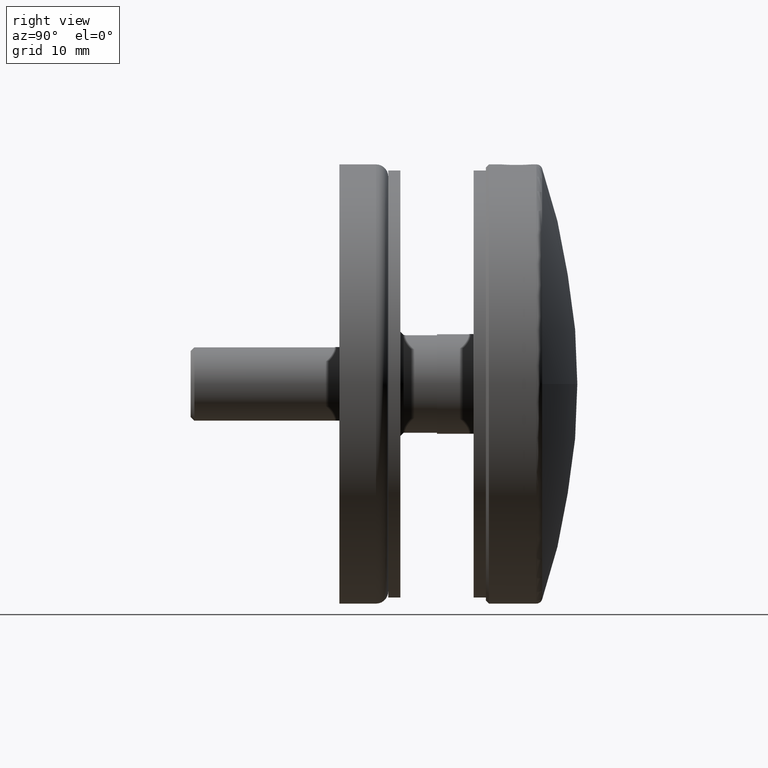
[diagram: clean part render]
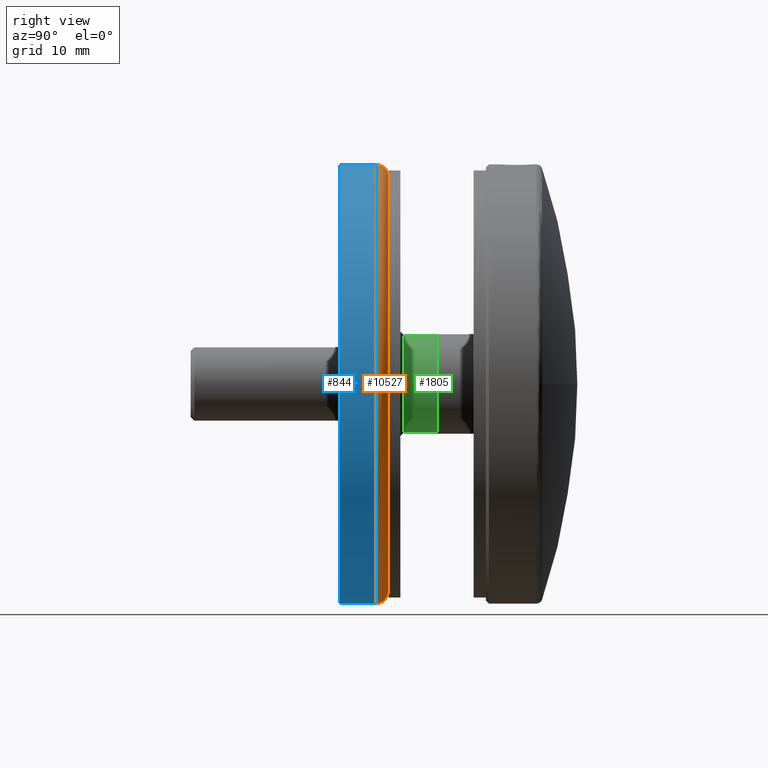
[diagram: same view with three faces highlighted in distinct colors, each labeled with its STEP entity id]
A machine part, right view with three faces highlighted in distinct colors.
Their STEP definitions:

[orange] entity #10527 — the highlighted toroidal blend (fillet) surface has major radius 34 mm and minor (blend) radius 2 mm.
#304 = CARTESIAN_POINT ( 'NONE',  ( 4.163799117100999770E-15, 6.000000000000000000, 33.99999999999999289 ) ) ;
#376 = AXIS2_PLACEMENT_3D ( 'NONE', #1940, #5580, #12835 ) ;
#504 = CIRCLE ( 'NONE', #7546, 33.99999999999997868 ) ;
#997 = CIRCLE ( 'NONE', #10123, 2.000000000000001776 ) ;
#1588 = DIRECTION ( 'NONE',  ( 1.000000000000000000, 0.000000000000000000, -1.224646799147353207E-16 ) ) ;
#1940 = CARTESIAN_POINT ( 'NONE',  ( 0.000000000000000000, 5.999999999999986677, 0.000000000000000000 ) ) ;
#1962 = ORIENTED_EDGE ( 'NONE', *, *, #5641, .T. ) ;
#2068 = CARTESIAN_POINT ( 'NONE',  ( 4.408728476930470856E-15, 5.999999999999986677, 36.00000000000000000 ) ) ;
#2279 = CARTESIAN_POINT ( 'NONE',  ( 0.000000000000000000, 6.000000000000000000, -33.99999999999999289 ) ) ;
#3968 = EDGE_CURVE ( 'NONE', #5866, #12025, #8446, .T. ) ;
#4628 = TOROIDAL_SURFACE ( 'NONE', #13883, 33.99999999999999289, 2.000000000000000888 ) ;
#4640 = CIRCLE ( 'NONE', #8056, 2.000000000000001776 ) ;
#4973 = CARTESIAN_POINT ( 'NONE',  ( 4.286263797015734130E-15, 8.000000000000000000, 33.99999999999997868 ) ) ;
#5580 = DIRECTION ( 'NONE',  ( -0.000000000000000000, -1.000000000000000000, -0.000000000000000000 ) ) ;
#5641 = EDGE_CURVE ( 'NONE', #12223, #9086, #504, .T. ) ;
#5866 = VERTEX_POINT ( 'NONE', #7226 ) ;
#6513 = DIRECTION ( 'NONE',  ( 0.000000000000000000, 0.000000000000000000, -1.000000000000000000 ) ) ;
#7226 = CARTESIAN_POINT ( 'NONE',  ( 0.000000000000000000, 5.999999999999986677, -36.00000000000000000 ) ) ;
#7546 = AXIS2_PLACEMENT_3D ( 'NONE', #12455, #7888, #6513 ) ;
#7875 = EDGE_CURVE ( 'NONE', #9086, #12025, #4640, .T. ) ;
#7888 = DIRECTION ( 'NONE',  ( -0.000000000000000000, -1.000000000000000000, -0.000000000000000000 ) ) ;
#8031 = DIRECTION ( 'NONE',  ( 0.000000000000000000, 0.000000000000000000, -1.000000000000000000 ) ) ;
#8056 = AXIS2_PLACEMENT_3D ( 'NONE', #304, #1588, #10338 ) ;
#8446 = CIRCLE ( 'NONE', #376, 36.00000000000000000 ) ;
#8542 = ORIENTED_EDGE ( 'NONE', *, *, #12204, .F. ) ;
#9086 = VERTEX_POINT ( 'NONE', #4973 ) ;
#9562 = CARTESIAN_POINT ( 'NONE',  ( 0.000000000000000000, 8.000000000000000000, -33.99999999999997868 ) ) ;
#9852 = ORIENTED_EDGE ( 'NONE', *, *, #3968, .F. ) ;
#10123 = AXIS2_PLACEMENT_3D ( 'NONE', #2279, #15559, #10671 ) ;
#10338 = DIRECTION ( 'NONE',  ( -1.224646799147353454E-16, 0.000000000000000000, -1.000000000000000000 ) ) ;
#10527 = ADVANCED_FACE ( 'NONE', ( #14531 ), #4628, .T. ) ;
#10671 = DIRECTION ( 'NONE',  ( 0.000000000000000000, 0.000000000000000000, 1.000000000000000000 ) ) ;
#12025 = VERTEX_POINT ( 'NONE', #2068 ) ;
#12101 = ORIENTED_EDGE ( 'NONE', *, *, #7875, .T. ) ;
#12204 = EDGE_CURVE ( 'NONE', #12223, #5866, #997, .T. ) ;
#12223 = VERTEX_POINT ( 'NONE', #9562 ) ;
#12455 = CARTESIAN_POINT ( 'NONE',  ( 0.000000000000000000, 8.000000000000000000, 0.000000000000000000 ) ) ;
#12485 = CARTESIAN_POINT ( 'NONE',  ( 0.000000000000000000, 6.000000000000000000, 0.000000000000000000 ) ) ;
#12835 = DIRECTION ( 'NONE',  ( 0.000000000000000000, 0.000000000000000000, -1.000000000000000000 ) ) ;
#13824 = DIRECTION ( 'NONE',  ( -0.000000000000000000, -1.000000000000000000, -0.000000000000000000 ) ) ;
#13883 = AXIS2_PLACEMENT_3D ( 'NONE', #12485, #13824, #8031 ) ;
#14158 = EDGE_LOOP ( 'NONE', ( #1962, #12101, #9852, #8542 ) ) ;
#14531 = FACE_OUTER_BOUND ( 'NONE', #14158, .T. ) ;
#15559 = DIRECTION ( 'NONE',  ( -1.000000000000000000, 0.000000000000000000, 0.000000000000000000 ) ) ;

[blue] entity #844 — the highlighted cylindrical surface (partial cylindrical patch) has radius 36 mm, axis along (-0, -1, -0).
#376 = AXIS2_PLACEMENT_3D ( 'NONE', #1940, #5580, #12835 ) ;
#532 = EDGE_LOOP ( 'NONE', ( #4581, #10542, #11706, #4909 ) ) ;
#778 = CARTESIAN_POINT ( 'NONE',  ( 0.000000000000000000, 0.000000000000000000, -36.00000000000000000 ) ) ;
#844 = ADVANCED_FACE ( 'NONE', ( #14020 ), #6747, .T. ) ;
#1013 = VERTEX_POINT ( 'NONE', #9711 ) ;
#1940 = CARTESIAN_POINT ( 'NONE',  ( 0.000000000000000000, 5.999999999999986677, 0.000000000000000000 ) ) ;
#2068 = CARTESIAN_POINT ( 'NONE',  ( 4.408728476930470856E-15, 5.999999999999986677, 36.00000000000000000 ) ) ;
#2110 = DIRECTION ( 'NONE',  ( -0.000000000000000000, -1.000000000000000000, -0.000000000000000000 ) ) ;
#2375 = CARTESIAN_POINT ( 'NONE',  ( 0.000000000000000000, 0.000000000000000000, 0.000000000000000000 ) ) ;
#2497 = EDGE_CURVE ( 'NONE', #12025, #1013, #6018, .T. ) ;
#2501 = CARTESIAN_POINT ( 'NONE',  ( 0.000000000000000000, 0.000000000000000000, 0.000000000000000000 ) ) ;
#3968 = EDGE_CURVE ( 'NONE', #5866, #12025, #8446, .T. ) ;
#4282 = DIRECTION ( 'NONE',  ( -0.000000000000000000, -1.000000000000000000, -0.000000000000000000 ) ) ;
#4581 = ORIENTED_EDGE ( 'NONE', *, *, #3968, .T. ) ;
#4909 = ORIENTED_EDGE ( 'NONE', *, *, #7404, .F. ) ;
#5482 = LINE ( 'NONE', #9247, #9044 ) ;
#5580 = DIRECTION ( 'NONE',  ( -0.000000000000000000, -1.000000000000000000, -0.000000000000000000 ) ) ;
#5649 = VECTOR ( 'NONE', #4282, 1000.000000000000000 ) ;
#5866 = VERTEX_POINT ( 'NONE', #7226 ) ;
#5897 = DIRECTION ( 'NONE',  ( 0.000000000000000000, 0.000000000000000000, -1.000000000000000000 ) ) ;
#6018 = LINE ( 'NONE', #8950, #5649 ) ;
#6134 = DIRECTION ( 'NONE',  ( -0.000000000000000000, -1.000000000000000000, -0.000000000000000000 ) ) ;
#6301 = VERTEX_POINT ( 'NONE', #778 ) ;
#6747 = CYLINDRICAL_SURFACE ( 'NONE', #8032, 36.00000000000000000 ) ;
#7226 = CARTESIAN_POINT ( 'NONE',  ( 0.000000000000000000, 5.999999999999986677, -36.00000000000000000 ) ) ;
#7404 = EDGE_CURVE ( 'NONE', #5866, #6301, #5482, .T. ) ;
#8032 = AXIS2_PLACEMENT_3D ( 'NONE', #2501, #6134, #12094 ) ;
#8446 = CIRCLE ( 'NONE', #376, 36.00000000000000000 ) ;
#8950 = CARTESIAN_POINT ( 'NONE',  ( 4.408728476930470856E-15, 0.000000000000000000, 36.00000000000000000 ) ) ;
#9044 = VECTOR ( 'NONE', #2110, 1000.000000000000000 ) ;
#9247 = CARTESIAN_POINT ( 'NONE',  ( 0.000000000000000000, 0.000000000000000000, -36.00000000000000000 ) ) ;
#9579 = EDGE_CURVE ( 'NONE', #6301, #1013, #13024, .T. ) ;
#9711 = CARTESIAN_POINT ( 'NONE',  ( 4.408728476930470856E-15, 0.000000000000000000, 36.00000000000000000 ) ) ;
#10542 = ORIENTED_EDGE ( 'NONE', *, *, #2497, .T. ) ;
#11706 = ORIENTED_EDGE ( 'NONE', *, *, #9579, .F. ) ;
#12025 = VERTEX_POINT ( 'NONE', #2068 ) ;
#12094 = DIRECTION ( 'NONE',  ( 0.000000000000000000, 0.000000000000000000, -1.000000000000000000 ) ) ;
#12835 = DIRECTION ( 'NONE',  ( 0.000000000000000000, 0.000000000000000000, -1.000000000000000000 ) ) ;
#13024 = CIRCLE ( 'NONE', #14579, 36.00000000000000000 ) ;
#14020 = FACE_OUTER_BOUND ( 'NONE', #532, .T. ) ;
#14229 = DIRECTION ( 'NONE',  ( -0.000000000000000000, -1.000000000000000000, -0.000000000000000000 ) ) ;
#14579 = AXIS2_PLACEMENT_3D ( 'NONE', #2375, #14229, #5897 ) ;

[green] entity #1805 — the highlighted cylindrical surface (partial cylindrical patch) has radius 8 mm, axis along (-0, -1, -0).
#622 = VERTEX_POINT ( 'NONE', #4777 ) ;
#1531 = CARTESIAN_POINT ( 'NONE',  ( 9.797174393178825657E-16, 8.000000000000000000, 8.000000000000000000 ) ) ;
#1805 = ADVANCED_FACE ( 'NONE', ( #3222 ), #8845, .T. ) ;
#2045 = DIRECTION ( 'NONE',  ( 0.000000000000000000, 0.000000000000000000, 1.000000000000000000 ) ) ;
#2691 = EDGE_CURVE ( 'NONE', #622, #3254, #9029, .T. ) ;
#2910 = EDGE_LOOP ( 'NONE', ( #14673, #12791, #14878, #10899 ) ) ;
#2998 = CARTESIAN_POINT ( 'NONE',  ( 0.000000000000000000, 8.000000000000000000, 0.000000000000000000 ) ) ;
#3222 = FACE_OUTER_BOUND ( 'NONE', #2910, .T. ) ;
#3254 = VERTEX_POINT ( 'NONE', #1531 ) ;
#3590 = CARTESIAN_POINT ( 'NONE',  ( 9.797174393178825657E-16, 2.499999999999998224, 8.000000000000000000 ) ) ;
#3897 = DIRECTION ( 'NONE',  ( -0.000000000000000000, -1.000000000000000000, -0.000000000000000000 ) ) ;
#3912 = EDGE_CURVE ( 'NONE', #622, #6794, #7491, .T. ) ;
#4209 = CARTESIAN_POINT ( 'NONE',  ( 0.000000000000000000, 2.499999999999998224, 0.000000000000000000 ) ) ;
#4363 = CARTESIAN_POINT ( 'NONE',  ( 0.000000000000000000, 2.499999999999998224, -8.000000000000000000 ) ) ;
#4478 = DIRECTION ( 'NONE',  ( -0.000000000000000000, -1.000000000000000000, -0.000000000000000000 ) ) ;
#4777 = CARTESIAN_POINT ( 'NONE',  ( 0.000000000000000000, 8.000000000000000000, -8.000000000000000000 ) ) ;
#5566 = VECTOR ( 'NONE', #15189, 1000.000000000000000 ) ;
#6005 = VECTOR ( 'NONE', #4478, 1000.000000000000000 ) ;
#6794 = VERTEX_POINT ( 'NONE', #4363 ) ;
#6859 = CARTESIAN_POINT ( 'NONE',  ( 9.797174393178825657E-16, 0.000000000000000000, 8.000000000000000000 ) ) ;
#7241 = AXIS2_PLACEMENT_3D ( 'NONE', #10898, #3897, #9802 ) ;
#7491 = LINE ( 'NONE', #11545, #6005 ) ;
#7766 = DIRECTION ( 'NONE',  ( 0.000000000000000000, 1.000000000000000000, 0.000000000000000000 ) ) ;
#7932 = AXIS2_PLACEMENT_3D ( 'NONE', #2998, #13768, #9021 ) ;
#8793 = EDGE_CURVE ( 'NONE', #3254, #12209, #14526, .T. ) ;
#8845 = CYLINDRICAL_SURFACE ( 'NONE', #7241, 8.000000000000000000 ) ;
#9021 = DIRECTION ( 'NONE',  ( 0.000000000000000000, 0.000000000000000000, -1.000000000000000000 ) ) ;
#9029 = CIRCLE ( 'NONE', #7932, 8.000000000000000000 ) ;
#9802 = DIRECTION ( 'NONE',  ( 0.000000000000000000, 0.000000000000000000, -1.000000000000000000 ) ) ;
#10898 = CARTESIAN_POINT ( 'NONE',  ( 0.000000000000000000, 0.000000000000000000, 0.000000000000000000 ) ) ;
#10899 = ORIENTED_EDGE ( 'NONE', *, *, #3912, .F. ) ;
#11448 = EDGE_CURVE ( 'NONE', #12209, #6794, #14308, .T. ) ;
#11545 = CARTESIAN_POINT ( 'NONE',  ( 0.000000000000000000, 0.000000000000000000, -8.000000000000000000 ) ) ;
#12209 = VERTEX_POINT ( 'NONE', #3590 ) ;
#12791 = ORIENTED_EDGE ( 'NONE', *, *, #8793, .T. ) ;
#13683 = AXIS2_PLACEMENT_3D ( 'NONE', #4209, #7766, #2045 ) ;
#13768 = DIRECTION ( 'NONE',  ( -0.000000000000000000, -1.000000000000000000, -0.000000000000000000 ) ) ;
#14308 = CIRCLE ( 'NONE', #13683, 8.000000000000000000 ) ;
#14526 = LINE ( 'NONE', #6859, #5566 ) ;
#14673 = ORIENTED_EDGE ( 'NONE', *, *, #2691, .T. ) ;
#14878 = ORIENTED_EDGE ( 'NONE', *, *, #11448, .T. ) ;
#15189 = DIRECTION ( 'NONE',  ( -0.000000000000000000, -1.000000000000000000, -0.000000000000000000 ) ) ;